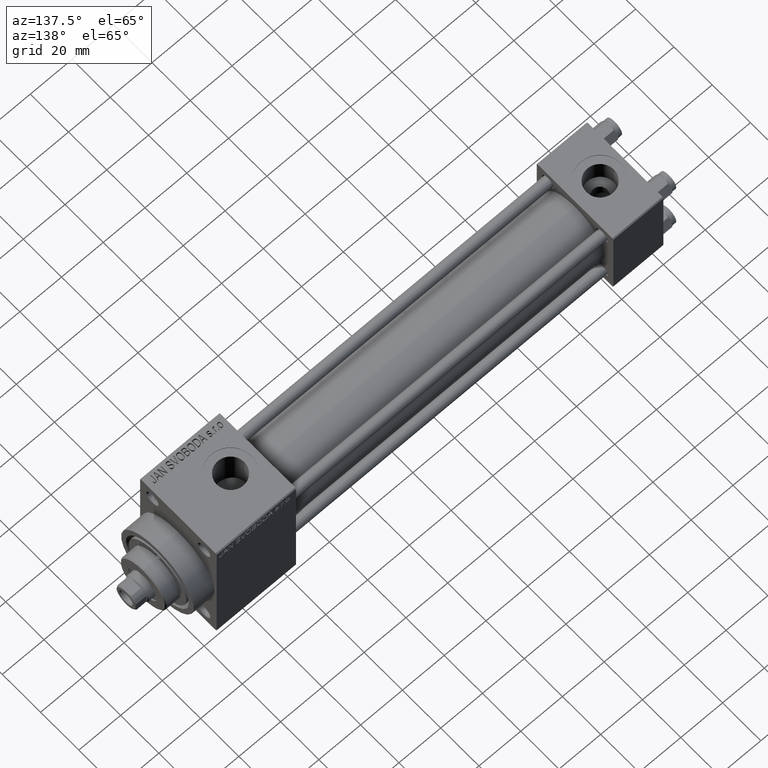
[diagram: clean part render]
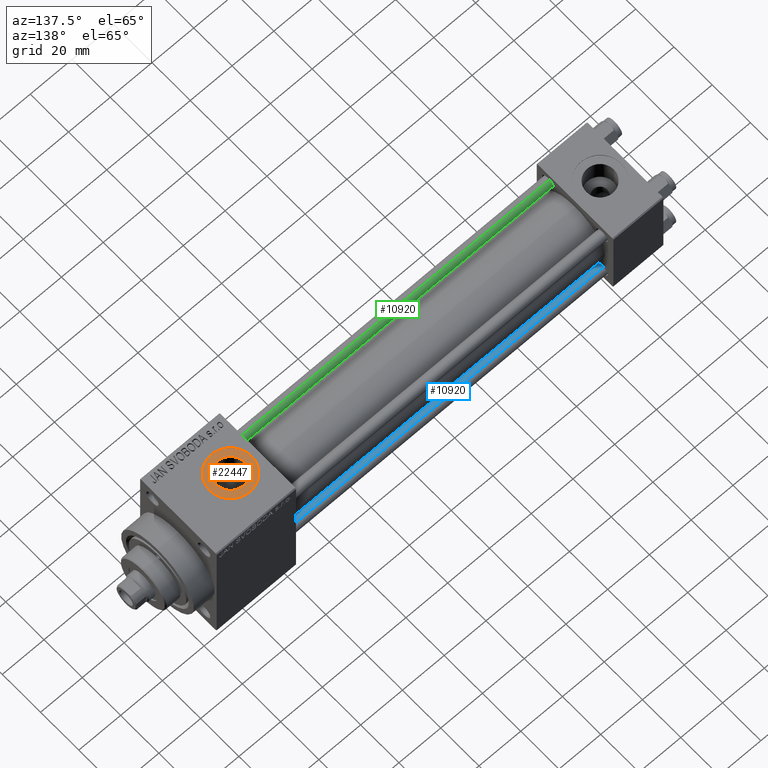
[diagram: same view with three faces highlighted in distinct colors, each labeled with its STEP entity id]
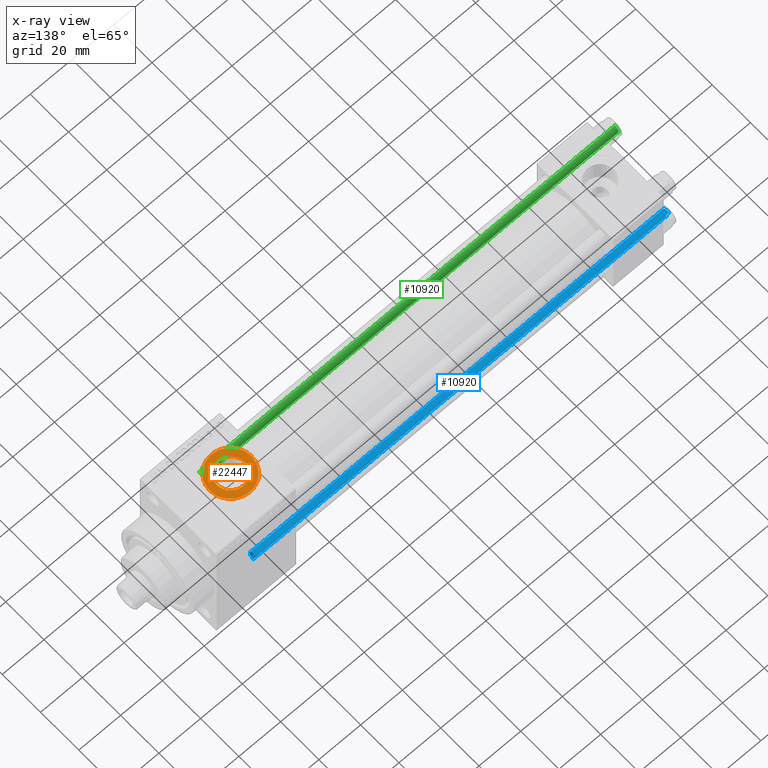
[diagram: x-ray of the same camera — body ghosted, the three highlighted faces saturated]
A machine part, auxiliary view with three faces highlighted in distinct colors.
The next image is the same camera in x-ray (body ghosted, the three faces saturated) — at least one of them is partly hidden behind the body in this view.
Their STEP definitions:

[orange] entity #22447 — the highlighted planar face has unit normal (0, 0, 1).
#522 = CIRCLE ( 'NONE', #20370, 10.00000000000000888 ) ;
#1069 = DIRECTION ( 'NONE',  ( 1.000000000000000000, 0.000000000000000000, 0.000000000000000000 ) ) ;
#1809 = EDGE_CURVE ( 'NONE', #9611, #3796, #17735, .T. ) ;
#2607 = CARTESIAN_POINT ( 'NONE',  ( 189.0000000000000000, -5.551115123125782702E-15, 31.80000000000000071 ) ) ;
#3796 = VERTEX_POINT ( 'NONE', #15229 ) ;
#3881 = CIRCLE ( 'NONE', #9970, 6.580000000000002736 ) ;
#4518 = CARTESIAN_POINT ( 'NONE',  ( 182.4199999999999875, -5.551115123125782702E-15, 31.80000000000000071 ) ) ;
#5966 = ORIENTED_EDGE ( 'NONE', *, *, #11194, .T. ) ;
#7795 = ORIENTED_EDGE ( 'NONE', *, *, #1809, .T. ) ;
#8692 = CARTESIAN_POINT ( 'NONE',  ( 179.0000000000000000, -4.326468323978428854E-15, 31.80000000000000071 ) ) ;
#9611 = VERTEX_POINT ( 'NONE', #4518 ) ;
#9970 = AXIS2_PLACEMENT_3D ( 'NONE', #37795, #26773, #19108 ) ;
#10849 = CIRCLE ( 'NONE', #42162, 10.00000000000000888 ) ;
#11194 = EDGE_CURVE ( 'NONE', #29715, #22462, #10849, .T. ) ;
#12043 = DIRECTION ( 'NONE',  ( -0.000000000000000000, -0.000000000000000000, -1.000000000000000000 ) ) ;
#15229 = CARTESIAN_POINT ( 'NONE',  ( 195.5800000000000125, -4.745297529286821294E-15, 31.80000000000000071 ) ) ;
#17591 = EDGE_LOOP ( 'NONE', ( #7795, #37652 ) ) ;
#17735 = CIRCLE ( 'NONE', #31529, 6.580000000000002736 ) ;
#18776 = DIRECTION ( 'NONE',  ( 0.000000000000000000, 0.000000000000000000, 1.000000000000000000 ) ) ;
#19010 = FACE_OUTER_BOUND ( 'NONE', #38983, .T. ) ;
#19108 = DIRECTION ( 'NONE',  ( 1.000000000000000000, 0.000000000000000000, 0.000000000000000000 ) ) ;
#19498 = CARTESIAN_POINT ( 'NONE',  ( 189.0000000000000000, -5.551115123125782702E-15, 31.80000000000000071 ) ) ;
#20370 = AXIS2_PLACEMENT_3D ( 'NONE', #2607, #23911, #39441 ) ;
#21319 = CARTESIAN_POINT ( 'NONE',  ( 199.0000000000000000, -5.551115123125782702E-15, 31.80000000000000071 ) ) ;
#21844 = EDGE_CURVE ( 'NONE', #22462, #29715, #522, .T. ) ;
#22390 = CARTESIAN_POINT ( 'NONE',  ( 189.0000000000000000, -5.551115123125782702E-15, 31.80000000000000071 ) ) ;
#22447 = ADVANCED_FACE ( 'NONE', ( #26677, #19010 ), #33629, .T. ) ;
#22462 = VERTEX_POINT ( 'NONE', #21319 ) ;
#22683 = AXIS2_PLACEMENT_3D ( 'NONE', #22390, #18776, #36983 ) ;
#23911 = DIRECTION ( 'NONE',  ( 0.000000000000000000, 0.000000000000000000, 1.000000000000000000 ) ) ;
#26677 = FACE_BOUND ( 'NONE', #17591, .T. ) ;
#26773 = DIRECTION ( 'NONE',  ( -0.000000000000000000, -0.000000000000000000, -1.000000000000000000 ) ) ;
#29715 = VERTEX_POINT ( 'NONE', #8692 ) ;
#31529 = AXIS2_PLACEMENT_3D ( 'NONE', #40771, #12043, #1069 ) ;
#33629 = PLANE ( 'NONE',  #22683 ) ;
#33642 = DIRECTION ( 'NONE',  ( 1.000000000000000000, 0.000000000000000000, 0.000000000000000000 ) ) ;
#36455 = EDGE_CURVE ( 'NONE', #3796, #9611, #3881, .T. ) ;
#36983 = DIRECTION ( 'NONE',  ( 1.000000000000000000, 0.000000000000000000, -0.000000000000000000 ) ) ;
#37652 = ORIENTED_EDGE ( 'NONE', *, *, #36455, .T. ) ;
#37795 = CARTESIAN_POINT ( 'NONE',  ( 189.0000000000000000, -5.551115123125782702E-15, 31.80000000000000071 ) ) ;
#37937 = DIRECTION ( 'NONE',  ( 0.000000000000000000, 0.000000000000000000, 1.000000000000000000 ) ) ;
#38983 = EDGE_LOOP ( 'NONE', ( #46143, #5966 ) ) ;
#39441 = DIRECTION ( 'NONE',  ( 1.000000000000000000, 0.000000000000000000, 0.000000000000000000 ) ) ;
#40771 = CARTESIAN_POINT ( 'NONE',  ( 189.0000000000000000, -5.551115123125782702E-15, 31.80000000000000071 ) ) ;
#42162 = AXIS2_PLACEMENT_3D ( 'NONE', #19498, #37937, #33642 ) ;
#46143 = ORIENTED_EDGE ( 'NONE', *, *, #21844, .T. ) ;

[blue] entity #10920 — the highlighted cylindrical surface (edge-blend (fillet) strip) has radius 2.5 mm, axis along (1, -0, 0).
#745 = CARTESIAN_POINT ( 'NONE',  ( 0.000000000000000000, 0.000000000000000000, 199.0000000000000000 ) ) ;
#1609 = LINE ( 'NONE', #30813, #28098 ) ;
#2543 = LINE ( 'NONE', #21186, #12356 ) ;
#3856 = DIRECTION ( 'NONE',  ( -0.000000000000000000, -0.000000000000000000, -1.000000000000000000 ) ) ;
#5767 = AXIS2_PLACEMENT_3D ( 'NONE', #28205, #35627, #16937 ) ;
#8904 = CIRCLE ( 'NONE', #5767, 2.500000000000000000 ) ;
#10920 = ADVANCED_FACE ( 'NONE', ( #15546 ), #11269, .T. ) ;
#10989 = CARTESIAN_POINT ( 'NONE',  ( 2.500000000000000000, 3.061616997868383141E-16, 198.5000000000000284 ) ) ;
#11269 = CYLINDRICAL_SURFACE ( 'NONE', #18488, 2.500000000000000000 ) ;
#12356 = VECTOR ( 'NONE', #35800, 1000.000000000000000 ) ;
#12556 = CARTESIAN_POINT ( 'NONE',  ( -2.500000000000000000, 0.000000000000000000, 198.5000000000000284 ) ) ;
#12977 = VERTEX_POINT ( 'NONE', #38989 ) ;
#13903 = VERTEX_POINT ( 'NONE', #10989 ) ;
#14380 = VERTEX_POINT ( 'NONE', #12556 ) ;
#15546 = FACE_OUTER_BOUND ( 'NONE', #38110, .T. ) ;
#16184 = CIRCLE ( 'NONE', #26136, 2.500000000000000000 ) ;
#16937 = DIRECTION ( 'NONE',  ( 1.000000000000000000, 0.000000000000000000, 0.000000000000000000 ) ) ;
#18488 = AXIS2_PLACEMENT_3D ( 'NONE', #745, #3856, #33767 ) ;
#18809 = CARTESIAN_POINT ( 'NONE',  ( 0.000000000000000000, 0.000000000000000000, 198.5000000000000284 ) ) ;
#21186 = CARTESIAN_POINT ( 'NONE',  ( 2.500000000000000000, 3.061616997868383141E-16, 199.0000000000000000 ) ) ;
#21943 = EDGE_CURVE ( 'NONE', #35693, #12977, #8904, .T. ) ;
#22627 = ORIENTED_EDGE ( 'NONE', *, *, #37681, .F. ) ;
#26136 = AXIS2_PLACEMENT_3D ( 'NONE', #18809, #30549, #41531 ) ;
#27191 = EDGE_CURVE ( 'NONE', #14380, #35693, #1609, .T. ) ;
#28098 = VECTOR ( 'NONE', #41556, 1000.000000000000000 ) ;
#28205 = CARTESIAN_POINT ( 'NONE',  ( 0.000000000000000000, 0.000000000000000000, 0.5000000000000004441 ) ) ;
#30549 = DIRECTION ( 'NONE',  ( 0.000000000000000000, 0.000000000000000000, -1.000000000000000000 ) ) ;
#30813 = CARTESIAN_POINT ( 'NONE',  ( -2.500000000000000000, 0.000000000000000000, 199.0000000000000000 ) ) ;
#32792 = ORIENTED_EDGE ( 'NONE', *, *, #27191, .T. ) ;
#33725 = CARTESIAN_POINT ( 'NONE',  ( -2.500000000000000000, 0.000000000000000000, 0.5000000000000004441 ) ) ;
#33767 = DIRECTION ( 'NONE',  ( -1.000000000000000000, 0.000000000000000000, 0.000000000000000000 ) ) ;
#35448 = ORIENTED_EDGE ( 'NONE', *, *, #38852, .T. ) ;
#35627 = DIRECTION ( 'NONE',  ( -0.000000000000000000, -0.000000000000000000, 1.000000000000000000 ) ) ;
#35693 = VERTEX_POINT ( 'NONE', #33725 ) ;
#35800 = DIRECTION ( 'NONE',  ( -0.000000000000000000, -0.000000000000000000, -1.000000000000000000 ) ) ;
#37681 = EDGE_CURVE ( 'NONE', #13903, #12977, #2543, .T. ) ;
#38110 = EDGE_LOOP ( 'NONE', ( #22627, #35448, #32792, #40168 ) ) ;
#38852 = EDGE_CURVE ( 'NONE', #13903, #14380, #16184, .T. ) ;
#38989 = CARTESIAN_POINT ( 'NONE',  ( 2.500000000000000000, 3.061616997868383141E-16, 0.5000000000000004441 ) ) ;
#40168 = ORIENTED_EDGE ( 'NONE', *, *, #21943, .T. ) ;
#41531 = DIRECTION ( 'NONE',  ( 1.000000000000000000, 0.000000000000000000, 0.000000000000000000 ) ) ;
#41556 = DIRECTION ( 'NONE',  ( -0.000000000000000000, -0.000000000000000000, -1.000000000000000000 ) ) ;

[green] entity #10920 — the highlighted cylindrical surface (edge-blend (fillet) strip) has radius 2.5 mm, axis along (1, 0, 0).
#745 = CARTESIAN_POINT ( 'NONE',  ( 0.000000000000000000, 0.000000000000000000, 199.0000000000000000 ) ) ;
#1609 = LINE ( 'NONE', #30813, #28098 ) ;
#2543 = LINE ( 'NONE', #21186, #12356 ) ;
#3856 = DIRECTION ( 'NONE',  ( -0.000000000000000000, -0.000000000000000000, -1.000000000000000000 ) ) ;
#5767 = AXIS2_PLACEMENT_3D ( 'NONE', #28205, #35627, #16937 ) ;
#8904 = CIRCLE ( 'NONE', #5767, 2.500000000000000000 ) ;
#10920 = ADVANCED_FACE ( 'NONE', ( #15546 ), #11269, .T. ) ;
#10989 = CARTESIAN_POINT ( 'NONE',  ( 2.500000000000000000, 3.061616997868383141E-16, 198.5000000000000284 ) ) ;
#11269 = CYLINDRICAL_SURFACE ( 'NONE', #18488, 2.500000000000000000 ) ;
#12356 = VECTOR ( 'NONE', #35800, 1000.000000000000000 ) ;
#12556 = CARTESIAN_POINT ( 'NONE',  ( -2.500000000000000000, 0.000000000000000000, 198.5000000000000284 ) ) ;
#12977 = VERTEX_POINT ( 'NONE', #38989 ) ;
#13903 = VERTEX_POINT ( 'NONE', #10989 ) ;
#14380 = VERTEX_POINT ( 'NONE', #12556 ) ;
#15546 = FACE_OUTER_BOUND ( 'NONE', #38110, .T. ) ;
#16184 = CIRCLE ( 'NONE', #26136, 2.500000000000000000 ) ;
#16937 = DIRECTION ( 'NONE',  ( 1.000000000000000000, 0.000000000000000000, 0.000000000000000000 ) ) ;
#18488 = AXIS2_PLACEMENT_3D ( 'NONE', #745, #3856, #33767 ) ;
#18809 = CARTESIAN_POINT ( 'NONE',  ( 0.000000000000000000, 0.000000000000000000, 198.5000000000000284 ) ) ;
#21186 = CARTESIAN_POINT ( 'NONE',  ( 2.500000000000000000, 3.061616997868383141E-16, 199.0000000000000000 ) ) ;
#21943 = EDGE_CURVE ( 'NONE', #35693, #12977, #8904, .T. ) ;
#22627 = ORIENTED_EDGE ( 'NONE', *, *, #37681, .F. ) ;
#26136 = AXIS2_PLACEMENT_3D ( 'NONE', #18809, #30549, #41531 ) ;
#27191 = EDGE_CURVE ( 'NONE', #14380, #35693, #1609, .T. ) ;
#28098 = VECTOR ( 'NONE', #41556, 1000.000000000000000 ) ;
#28205 = CARTESIAN_POINT ( 'NONE',  ( 0.000000000000000000, 0.000000000000000000, 0.5000000000000004441 ) ) ;
#30549 = DIRECTION ( 'NONE',  ( 0.000000000000000000, 0.000000000000000000, -1.000000000000000000 ) ) ;
#30813 = CARTESIAN_POINT ( 'NONE',  ( -2.500000000000000000, 0.000000000000000000, 199.0000000000000000 ) ) ;
#32792 = ORIENTED_EDGE ( 'NONE', *, *, #27191, .T. ) ;
#33725 = CARTESIAN_POINT ( 'NONE',  ( -2.500000000000000000, 0.000000000000000000, 0.5000000000000004441 ) ) ;
#33767 = DIRECTION ( 'NONE',  ( -1.000000000000000000, 0.000000000000000000, 0.000000000000000000 ) ) ;
#35448 = ORIENTED_EDGE ( 'NONE', *, *, #38852, .T. ) ;
#35627 = DIRECTION ( 'NONE',  ( -0.000000000000000000, -0.000000000000000000, 1.000000000000000000 ) ) ;
#35693 = VERTEX_POINT ( 'NONE', #33725 ) ;
#35800 = DIRECTION ( 'NONE',  ( -0.000000000000000000, -0.000000000000000000, -1.000000000000000000 ) ) ;
#37681 = EDGE_CURVE ( 'NONE', #13903, #12977, #2543, .T. ) ;
#38110 = EDGE_LOOP ( 'NONE', ( #22627, #35448, #32792, #40168 ) ) ;
#38852 = EDGE_CURVE ( 'NONE', #13903, #14380, #16184, .T. ) ;
#38989 = CARTESIAN_POINT ( 'NONE',  ( 2.500000000000000000, 3.061616997868383141E-16, 0.5000000000000004441 ) ) ;
#40168 = ORIENTED_EDGE ( 'NONE', *, *, #21943, .T. ) ;
#41531 = DIRECTION ( 'NONE',  ( 1.000000000000000000, 0.000000000000000000, 0.000000000000000000 ) ) ;
#41556 = DIRECTION ( 'NONE',  ( -0.000000000000000000, -0.000000000000000000, -1.000000000000000000 ) ) ;